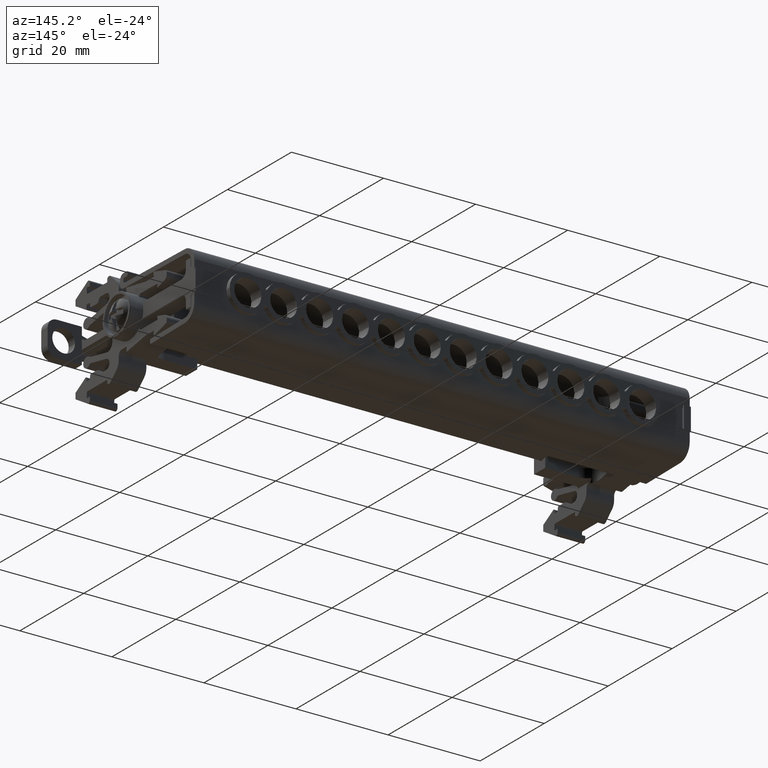
[diagram: clean part render]
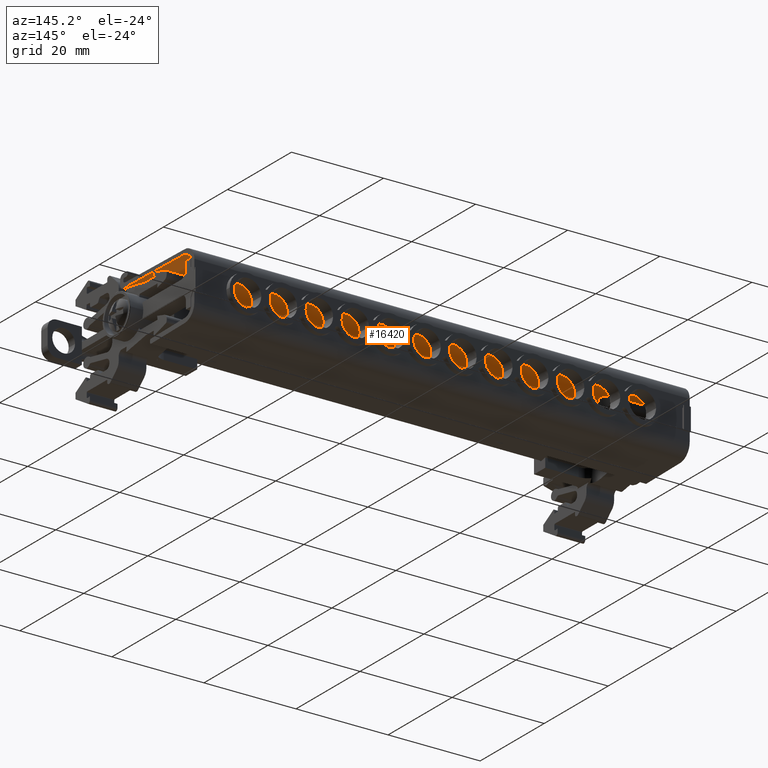
[diagram: same view with one face highlighted and labeled with its STEP entity id]
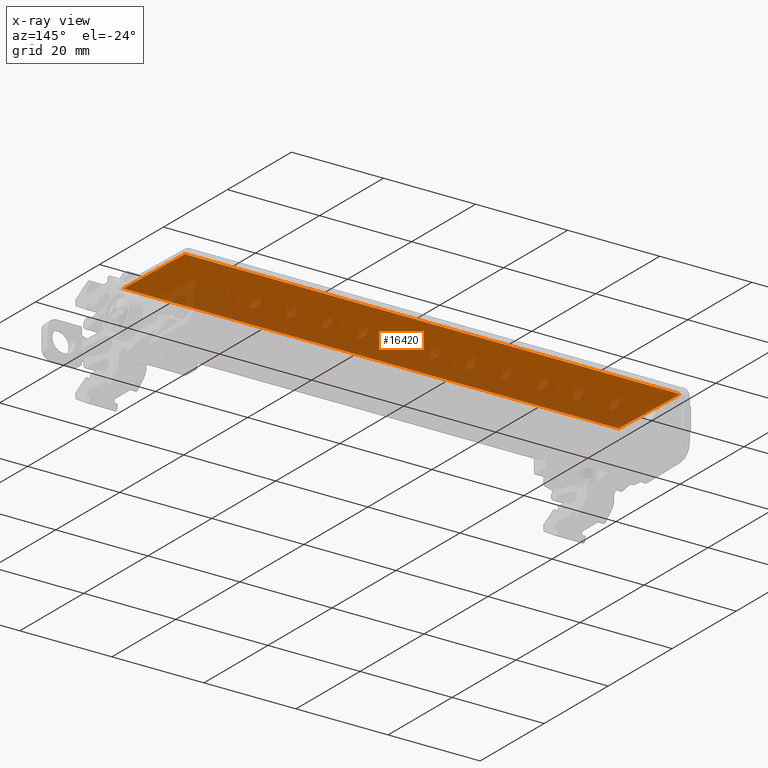
[diagram: x-ray of the same camera — body ghosted, the highlighted face saturated]
A machine part, auxiliary view. The second image highlights one B-rep face of the part: STEP entity #16420.
The next image is the same camera in x-ray: the body ghosted, the highlighted face saturated — about 47% of this face is hidden behind the body in this view.
In plain terms, the highlighted planar face has unit normal (-0, -0.0175, -0.9998).
Its self-contained STEP definition (entity closure, byte-faithful):
#4728 = EDGE_LOOP ( 'NONE', ( #28909, #28958, #28743, #28906, #28927, #28751, #28875, #28932, #29008, #28870 ) ) ;
#11711 = EDGE_CURVE ( 'NONE', #29486, #29505, #16458, .T. ) ;
#11722 = EDGE_CURVE ( 'NONE', #29566, #29486, #16503, .T. ) ;
#11771 = EDGE_CURVE ( 'NONE', #29567, #29570, #16641, .T. ) ;
#11797 = EDGE_CURVE ( 'NONE', #29536, #29527, #16733, .T. ) ;
#11886 = EDGE_CURVE ( 'NONE', #29566, #29570, #18038, .T. ) ;
#11914 = EDGE_CURVE ( 'NONE', #29505, #29527, #17020, .T. ) ;
#11954 = EDGE_CURVE ( 'NONE', #29591, #29595, #17091, .T. ) ;
#11957 = EDGE_CURVE ( 'NONE', #29591, #29592, #17074, .T. ) ;
#11961 = EDGE_CURVE ( 'NONE', #29567, #29592, #17082, .T. ) ;
#11979 = EDGE_CURVE ( 'NONE', #29595, #29536, #17119, .T. ) ;
#12094 = VECTOR ( 'NONE', #16635, 1000.000000000000000 ) ;
#12123 = VECTOR ( 'NONE', #16453, 1000.000000000000000 ) ;
#12139 = VECTOR ( 'NONE', #16461, 1000.000000000000100 ) ;
#12160 = VECTOR ( 'NONE', #16752, 1000.000000000000100 ) ;
#12223 = VECTOR ( 'NONE', #17093, 1000.000000000000000 ) ;
#12225 = VECTOR ( 'NONE', #17056, 1000.000000000000000 ) ;
#12227 = VECTOR ( 'NONE', #17076, 1000.000000000000000 ) ;
#12230 = VECTOR ( 'NONE', #18046, 1000.000000000000000 ) ;
#12239 = VECTOR ( 'NONE', #17140, 1000.000000000000000 ) ;
#12276 = VECTOR ( 'NONE', #17105, 1000.000000000000000 ) ;
#16420 = ADVANCED_FACE ( 'NONE', ( #25518 ), #25505, .T. ) ;
#16452 = CARTESIAN_POINT ( 'NONE',  ( 23.40827774791292600, -44.00701231195135000, 102.5540303868498700 ) ) ;
#16453 = DIRECTION ( 'NONE',  ( 1.000000000000000000, 1.123605221867979900E-014, -1.149507329944757500E-014 ) ) ;
#16458 = LINE ( 'NONE', #16464, #12139 ) ;
#16461 = DIRECTION ( 'NONE',  ( -1.143495760478977800E-014, 0.9998476951563332000, -0.01745240644060911500 ) ) ;
#16464 = CARTESIAN_POINT ( 'NONE',  ( 24.22822092972982200, -44.22502056476010100, 102.5578357350581900 ) ) ;
#16503 = LINE ( 'NONE', #16452, #12123 ) ;
#16635 = DIRECTION ( 'NONE',  ( 1.000000000000000000, 1.123605221867979900E-014, -1.149507329944757500E-014 ) ) ;
#16641 = LINE ( 'NONE', #16703, #12094 ) ;
#16703 = CARTESIAN_POINT ( 'NONE',  ( 1.016762596590701500, -44.00701231195162700, 102.5540303868499900 ) ) ;
#16733 = LINE ( 'NONE', #16742, #12160 ) ;
#16742 = CARTESIAN_POINT ( 'NONE',  ( -83.37151391783994800, -44.22502056476091100, 102.5578357350587500 ) ) ;
#16752 = DIRECTION ( 'NONE',  ( -1.119121859916882700E-014, 0.9998476951563332000, -0.01745240644060911500 ) ) ;
#17020 = LINE ( 'NONE', #17035, #12225 ) ;
#17035 = CARTESIAN_POINT ( 'NONE',  ( 22.73827774791263700, -24.76194074849122700, 102.2181064130975000 ) ) ;
#17056 = DIRECTION ( 'NONE',  ( -1.000000000000000000, -1.123605221867985000E-014, 1.149507329944757500E-014 ) ) ;
#17074 = LINE ( 'NONE', #17085, #12276 ) ;
#17076 = DIRECTION ( 'NONE',  ( -1.000000000000000000, 4.942295034820201200E-015, 1.068604733563566200E-014 ) ) ;
#17078 = CARTESIAN_POINT ( 'NONE',  ( 23.55822092972952200, -44.00701231195268500, 102.5540303868493200 ) ) ;
#17082 = LINE ( 'NONE', #17078, #12223 ) ;
#17085 = CARTESIAN_POINT ( 'NONE',  ( -30.17141922132243400, -44.00701231195197500, 102.5540303868501000 ) ) ;
#17091 = LINE ( 'NONE', #17101, #12227 ) ;
#17093 = DIRECTION ( 'NONE',  ( -1.000000000000000000, 4.942295034820201200E-015, 1.068604733563566200E-014 ) ) ;
#17101 = CARTESIAN_POINT ( 'NONE',  ( 23.55822092972952200, -44.00701231195268500, 102.5540303868493200 ) ) ;
#17105 = DIRECTION ( 'NONE',  ( 1.000000000000000000, 1.123605221867979900E-014, -1.149507329944757500E-014 ) ) ;
#17111 = CARTESIAN_POINT ( 'NONE',  ( -83.02164649360055600, -44.00701231195217400, 102.5540303868504300 ) ) ;
#17119 = LINE ( 'NONE', #17111, #12239 ) ;
#17140 = DIRECTION ( 'NONE',  ( -1.000000000000000000, -1.123605221868004800E-014, -2.470852055925285700E-015 ) ) ;
#18008 = CARTESIAN_POINT ( 'NONE',  ( 23.55822092972952200, -44.00701231195268500, 102.5540303868493200 ) ) ;
#18038 = LINE ( 'NONE', #18008, #12230 ) ;
#18046 = DIRECTION ( 'NONE',  ( -1.000000000000000000, 4.942295034820201200E-015, 1.068604733563566200E-014 ) ) ;
#23641 = AXIS2_PLACEMENT_3D ( 'NONE', #25489, #25506, #25509 ) ;
#25489 = CARTESIAN_POINT ( 'NONE',  ( 22.73827774791293500, -43.78615311471156700, 102.5501752752206200 ) ) ;
#25505 = PLANE ( 'NONE',  #23641 ) ;
#25506 = DIRECTION ( 'NONE',  ( -1.129722639399774600E-014, -0.01745240644060911900, -0.9998476951563332000 ) ) ;
#25509 = DIRECTION ( 'NONE',  ( -1.143495760478977600E-014, 0.9998476951563332000, -0.01745240644060911900 ) ) ;
#25518 = FACE_OUTER_BOUND ( 'NONE', #4728, .T. ) ;
#28743 = ORIENTED_EDGE ( 'NONE', *, *, #11722, .F. ) ;
#28751 = ORIENTED_EDGE ( 'NONE', *, *, #11961, .T. ) ;
#28870 = ORIENTED_EDGE ( 'NONE', *, *, #11797, .T. ) ;
#28875 = ORIENTED_EDGE ( 'NONE', *, *, #11957, .F. ) ;
#28906 = ORIENTED_EDGE ( 'NONE', *, *, #11886, .T. ) ;
#28909 = ORIENTED_EDGE ( 'NONE', *, *, #11914, .F. ) ;
#28927 = ORIENTED_EDGE ( 'NONE', *, *, #11771, .F. ) ;
#28932 = ORIENTED_EDGE ( 'NONE', *, *, #11954, .T. ) ;
#28958 = ORIENTED_EDGE ( 'NONE', *, *, #11711, .F. ) ;
#29008 = ORIENTED_EDGE ( 'NONE', *, *, #11979, .T. ) ;
#29486 = VERTEX_POINT ( 'NONE', #30365 ) ;
#29505 = VERTEX_POINT ( 'NONE', #30384 ) ;
#29527 = VERTEX_POINT ( 'NONE', #30361 ) ;
#29536 = VERTEX_POINT ( 'NONE', #30442 ) ;
#29566 = VERTEX_POINT ( 'NONE', #30408 ) ;
#29567 = VERTEX_POINT ( 'NONE', #30407 ) ;
#29570 = VERTEX_POINT ( 'NONE', #30410 ) ;
#29591 = VERTEX_POINT ( 'NONE', #30430 ) ;
#29592 = VERTEX_POINT ( 'NONE', #30426 ) ;
#29595 = VERTEX_POINT ( 'NONE', #30431 ) ;
#30361 = CARTESIAN_POINT ( 'NONE',  ( -83.37151391784036000, -24.76194074849204800, 102.2181064130980600 ) ) ;
#30365 = CARTESIAN_POINT ( 'NONE',  ( 24.22822092972982200, -44.00701231195135000, 102.5540303868498700 ) ) ;
#30384 = CARTESIAN_POINT ( 'NONE',  ( 24.22822092972962000, -24.76194074849122700, 102.2181064130975000 ) ) ;
#30407 = CARTESIAN_POINT ( 'NONE',  ( -13.12787755480260000, -44.00701231195250100, 102.5540303868497600 ) ) ;
#30408 = CARTESIAN_POINT ( 'NONE',  ( 2.466213354153815800, -44.00701231195258600, 102.5540303868495500 ) ) ;
#30410 = CARTESIAN_POINT ( 'NONE',  ( 0.7668572935623403400, -44.00701231195257200, 102.5540303868495500 ) ) ;
#30426 = CARTESIAN_POINT ( 'NONE',  ( -14.82723361539403200, -44.00701231195248700, 102.5540303868497600 ) ) ;
#30430 = CARTESIAN_POINT ( 'NONE',  ( -44.31605937271612600, -44.00701231195175500, 102.5540303868502100 ) ) ;
#30431 = CARTESIAN_POINT ( 'NONE',  ( -46.01541543330751700, -44.00701231195235200, 102.5540303868501000 ) ) ;
#30442 = CARTESIAN_POINT ( 'NONE',  ( -83.37151391783994800, -44.00701231195216000, 102.5540303868504300 ) ) ;